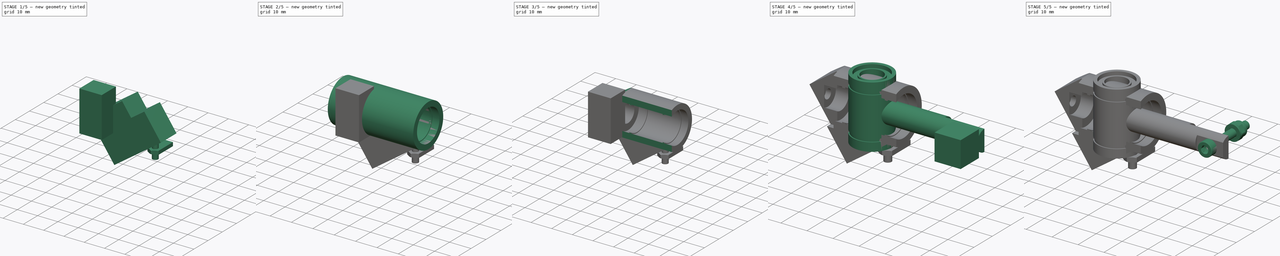
[diagram: build sequence overview — one tinted view per stage of 5, left to right]
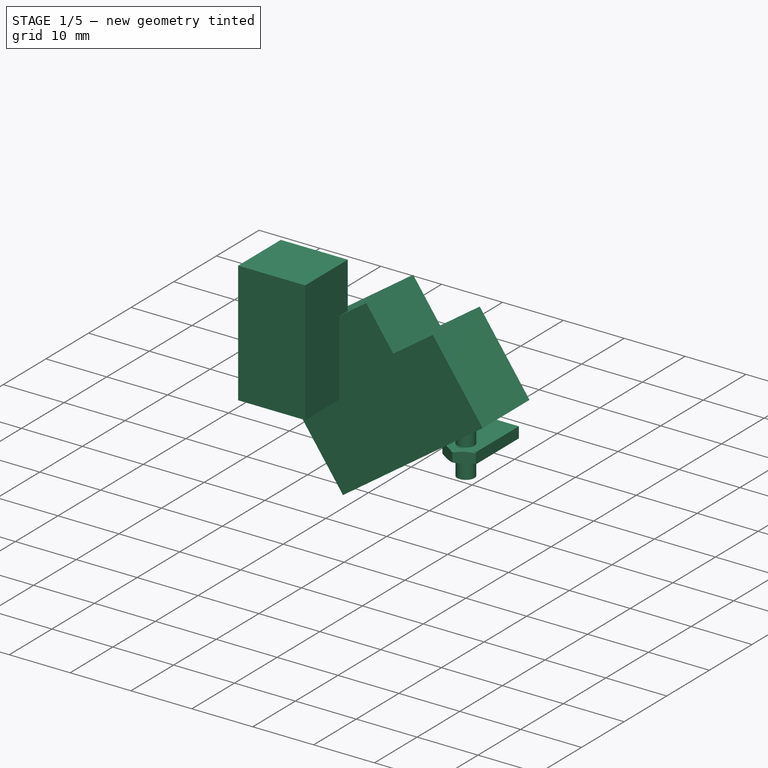
[diagram: stage 1 of 5 — iso view after this stage's code; geometry added in this stage tinted green]
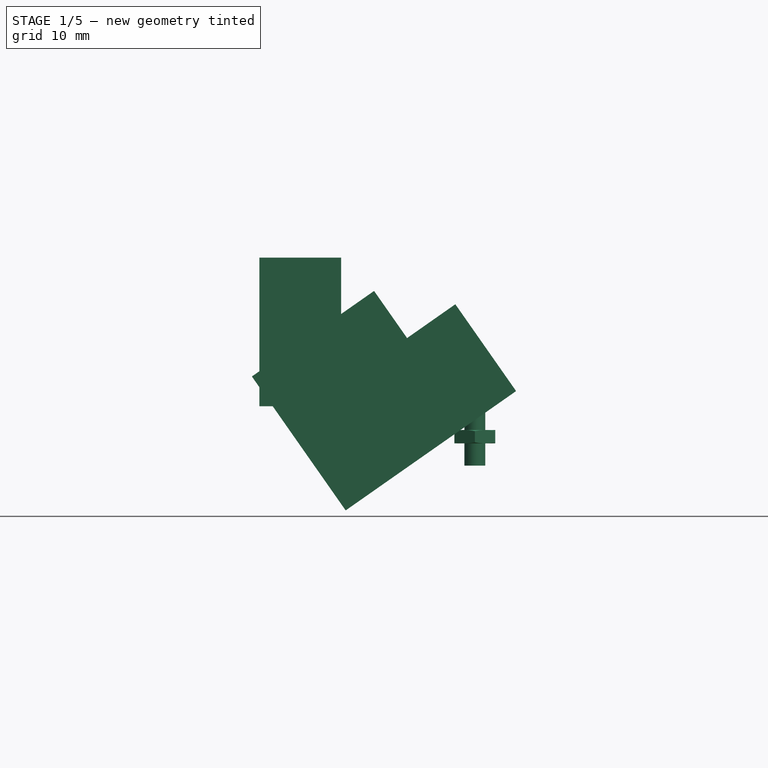
[diagram: stage 1 of 5 — front view after this stage's code; geometry added in this stage tinted green]
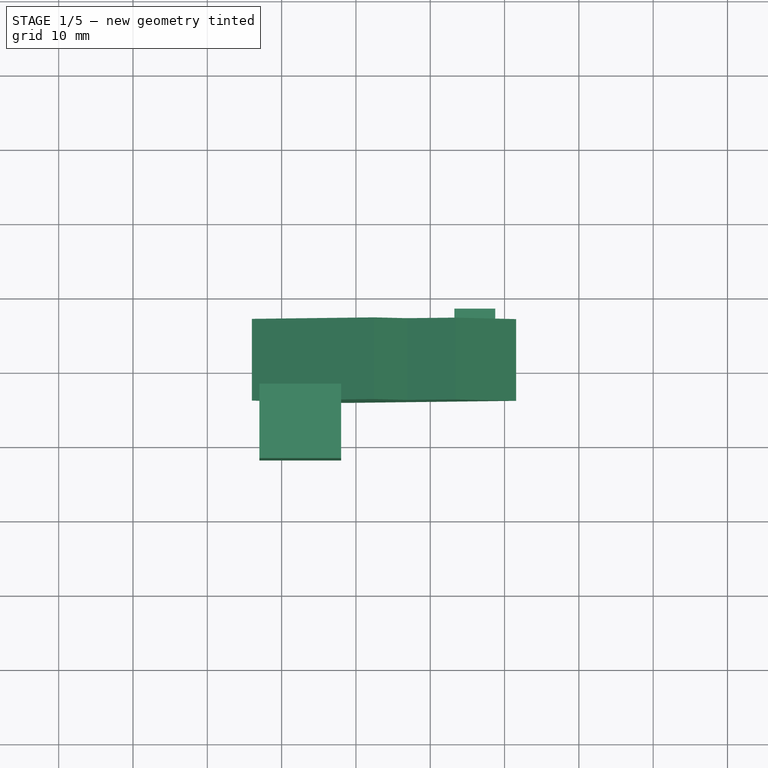
[diagram: stage 1 of 5 — top view after this stage's code; geometry added in this stage tinted green]
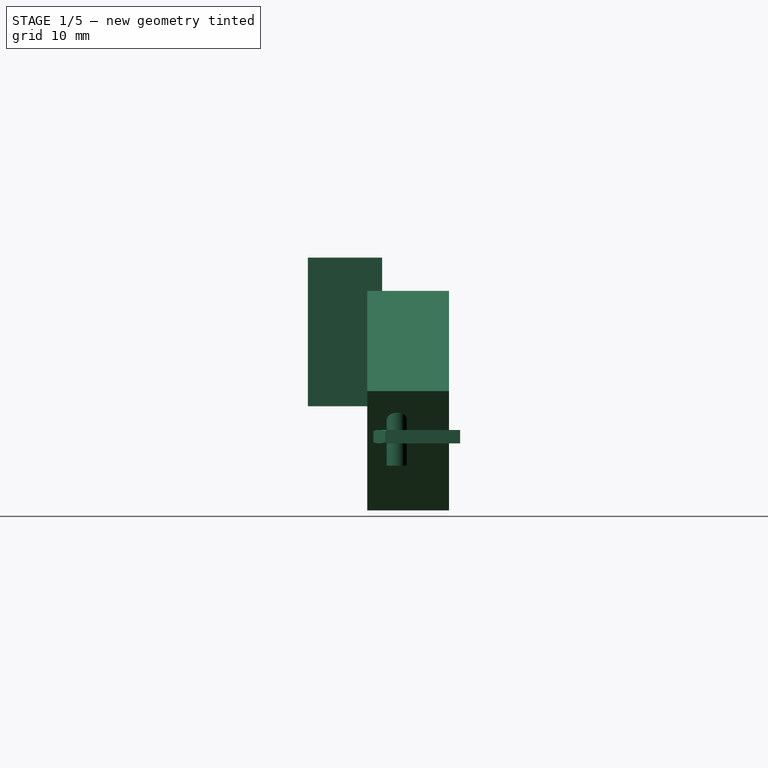
[diagram: stage 1 of 5 — right view after this stage's code; geometry added in this stage tinted green]
FCSTD DOCUMENT  (FreeCAD 0.18R16117 (Git))
Label: Linear_GT2_Belt_Tensioner
License: All rights reserved
LicenseURL: http://en.wikipedia.org/wiki/All_rights_reserved
objects: Part::Cut×13, Part::Box×9, Part::Cylinder×8, Part::FeaturePython×5, Part::Feature×4, App::Part×3, Sketcher::SketchObject×1, PartDesign::Revolution×1, Part::MultiFuse×1
note: 43 computed .brp shape members not serialized (recipe doc carries the construction recipe); baked Part::Feature solids carry a one-line shape summary decoded from their .brp

FEATURE [App::Part] Part  label="Linear_GT2_Belt_Tensioner_Cursor"
  Group = -> [Cylinder025,Box,Box001,Cut,Cut001,Screw,Washer,Nut,Washer001,Connect001,Cylinder,Cut002,Cylinder026,Cut003]
  Origin = -> Origin
  Placement = pos=(-12,0,0) rot=(0,0,1;0rad)
FEATURE [Part::Feature] Revolution001001  label="LM8UU-simple_copy"
  Placement = pos=(0,0,0) rot=(0.57735,-0.57735,0.57735;2.0944rad)
  shape: bbox 24 x 15 x 15 mm, 20 faces (baked)
FEATURE [Part::Box] Box004  label="Cube004"
  AttacherType = Attacher::AttachEngine3D
  Height = 28
  Length = 22
  Placement = pos=(-24,-4,-5) rot=(0,1,0;0.959931rad)
  Width = 11
FEATURE [Part::Box] Box009  label="Cube009"
  AttacherType = Attacher::AttachEngine3D
  Height = 9
  Length = 12
  Placement = pos=(-10,-4,10) rot=(0,1,0;0.959931rad)
  Width = 11
FEATURE [Part::Cut] Cut004
  Base = -> Box004
  Tool = -> Box009
FEATURE [Part::Box] Box008  label="Cube008"
  AttacherType = Attacher::AttachEngine3D
  Height = 20
  Length = 11
  Placement = pos=(-12,-12,11) rot=(0,1,0;3.14159rad)
  Width = 10
FEATURE [Part::Feature] Cut012001  label="Cut013"
  shape: bbox 34.65 x 14 x 29.89 mm, 26 faces (baked)
FEATURE [App::Part] Part001  label="Linear_GT2_Belt_Tensioner_case"
  Group = -> [Revolution001,Revolution001001,Box004,Box005,Box006,Cylinder032,Cylinder033,Cylinder034,Cylinder035,Box007,Box008,Box009,Cut004,Fusion,Cut005,Cut006,Cut007,Cut008,Cut009,Cut010,Cut011,Cut012,Sketch,Revolution,Cut012001]
  Origin = -> Origin001
FEATURE [App::Part] Part002
  Group = -> [Part,Part001]
  Origin = -> Origin002
  Placement = pos=(0,0,0) rot=(0,-1,0;0.959931rad)
FEATURE [Part::FeaturePython] Nut001  label="M3-Nut"  # Fasteners workbench fastener (typed FeaturePython)
  Placement = pos=(6,0,-14) rot=(0,0,1;0.523599rad)
  diameter = 4
  invert = false
  matchOuter = false
  offset = 0
  thread = false
  type = 6
FEATURE [Part::Box] Box010  label="Cube010"
  AttacherType = Attacher::AttachEngine3D
  Height = 1.8
  Length = 5.5
  Placement = pos=(3.25,-1.5,-14) rot=(0,0,1;0rad)
  Width = 10
FEATURE [Part::Cylinder] Cylinder036  label="Cylinder009"
  Angle = 360
  AttacherType = Attacher::AttachEngine3D
  Height = 8
  Placement = pos=(6,0,-17) rot=(0,0,1;0rad)
  Radius = 1.4
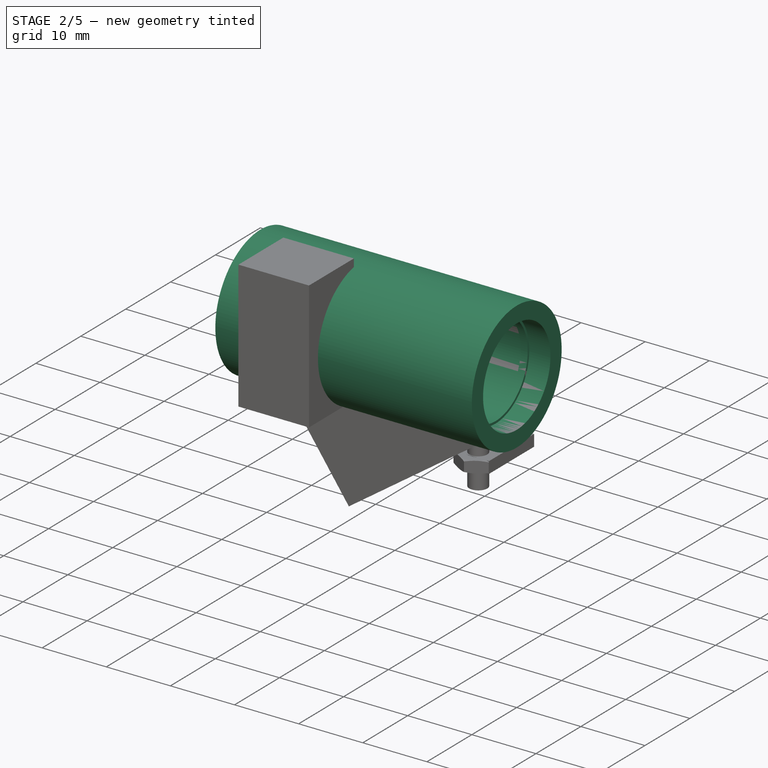
[diagram: stage 2 of 5 — iso view after this stage's code; geometry added in this stage tinted green]
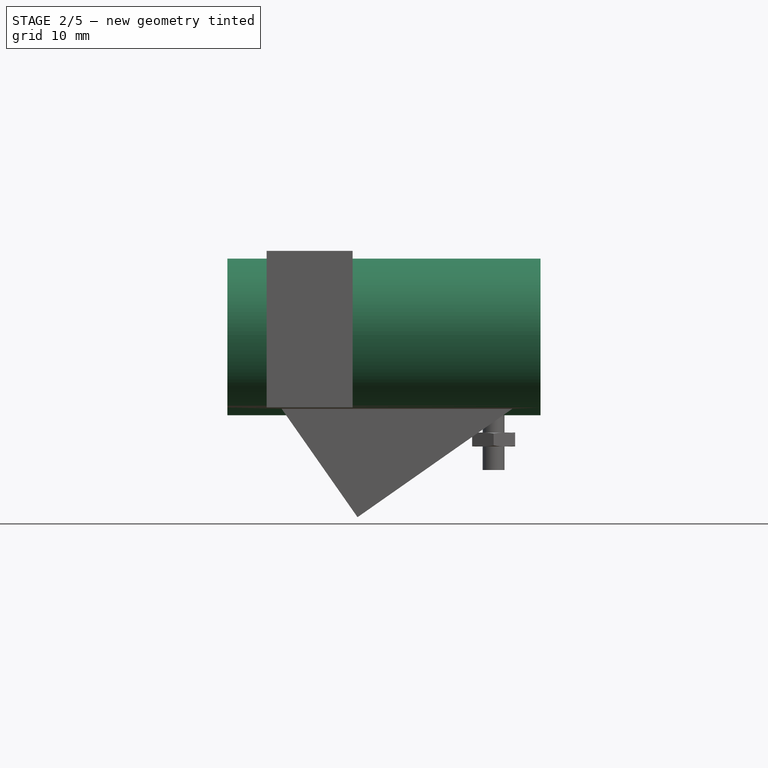
[diagram: stage 2 of 5 — front view after this stage's code; geometry added in this stage tinted green]
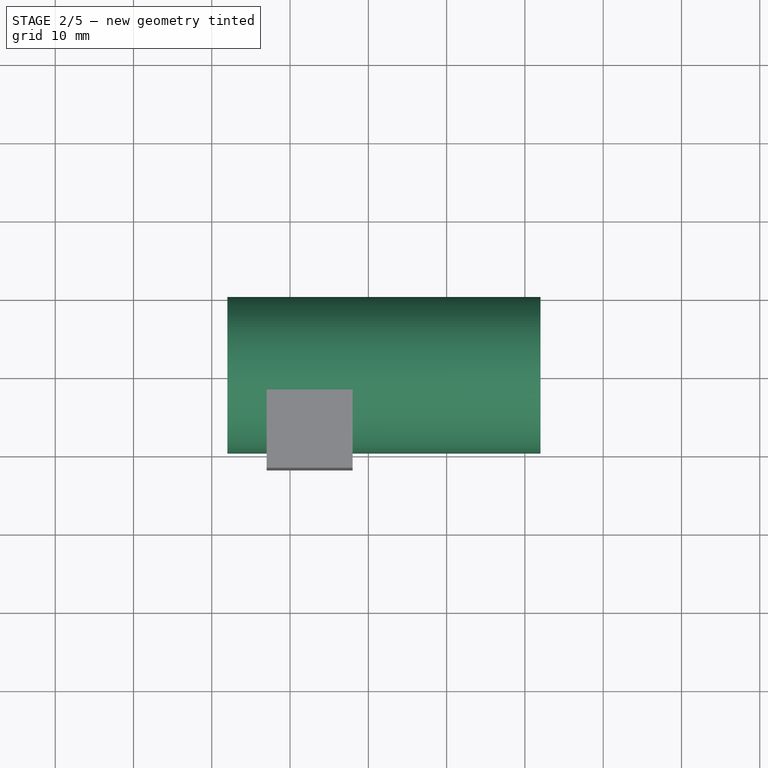
[diagram: stage 2 of 5 — top view after this stage's code; geometry added in this stage tinted green]
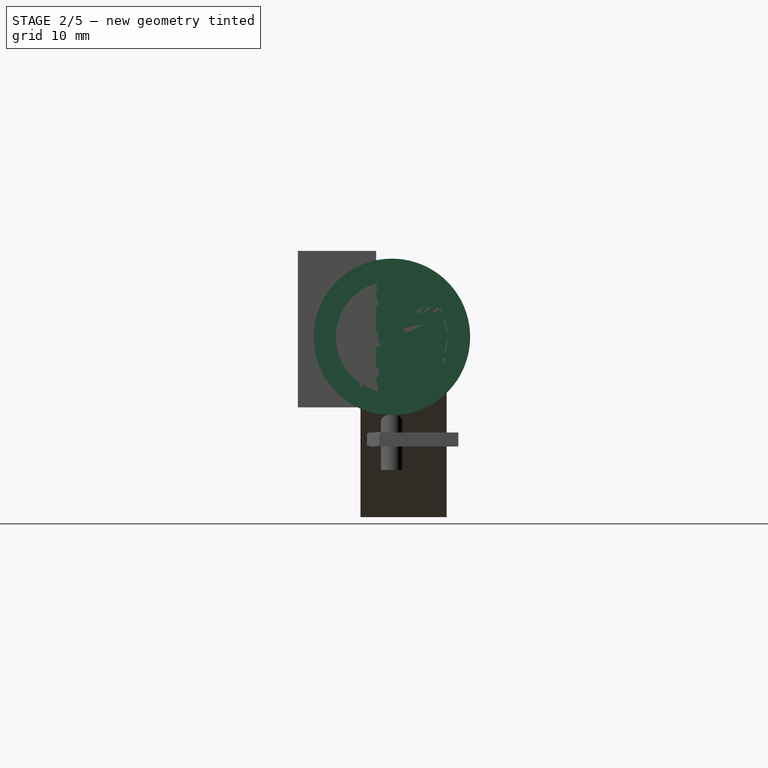
[diagram: stage 2 of 5 — right view after this stage's code; geometry added in this stage tinted green]
FEATURE [Part::Cylinder] Cylinder032  label="Cylinder006"
  Angle = 360
  AttacherType = Attacher::AttachEngine3D
  Height = 40
  Placement = pos=(12,0,0) rot=(0,-1,0;1.5708rad)
  Radius = 10
FEATURE [Part::Cylinder] Cylinder033  label="Cylinder007"
  Angle = 360
  AttacherType = Attacher::AttachEngine3D
  Height = 24
  Placement = pos=(12,0,0) rot=(0,-1,0;1.5708rad)
  Radius = 7
FEATURE [Part::Cylinder] Cylinder034  label="Bar_8mm002"
  Angle = 360
  AttacherType = Attacher::AttachEngine3D
  Height = 5
  Placement = pos=(-12,0,0) rot=(0,-1,0;1.5708rad)
  Radius = 4.4
FEATURE [Part::Cylinder] Cylinder035  label="Cylinder008"
  Angle = 360
  AttacherType = Attacher::AttachEngine3D
  Height = 12
  Placement = pos=(-7,0,0) rot=(0,-1,0;1.5708rad)
  Radius = 1.8
FEATURE [Part::MultiFuse] Fusion
  Shapes = -> [Cut004,Cylinder032]
FEATURE [Part::Cut] Cut005
  Base = -> Fusion
  Tool = -> Revolution001001
FEATURE [Part::Cut] Cut006
  Base = -> Cut005
  Tool = -> Cylinder033
FEATURE [Part::Cut] Cut007
  Base = -> Cut006
  Tool = -> Cylinder034
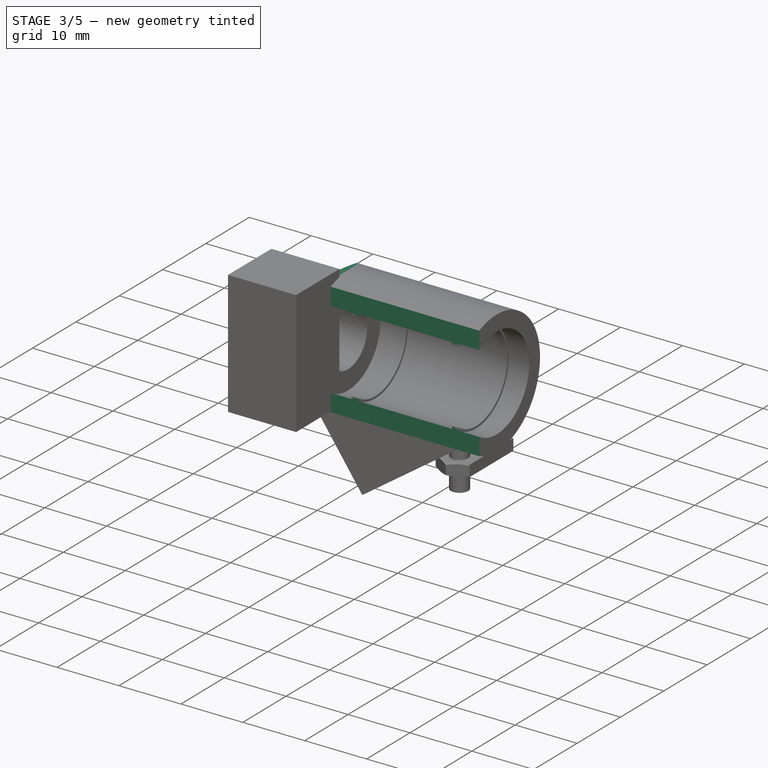
[diagram: stage 3 of 5 — iso view after this stage's code; geometry added in this stage tinted green]
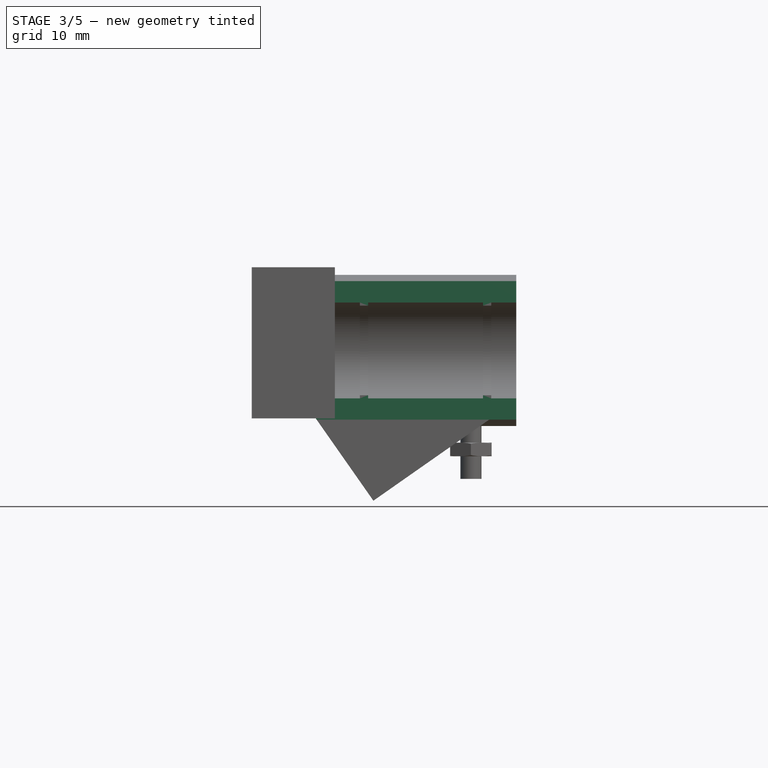
[diagram: stage 3 of 5 — front view after this stage's code; geometry added in this stage tinted green]
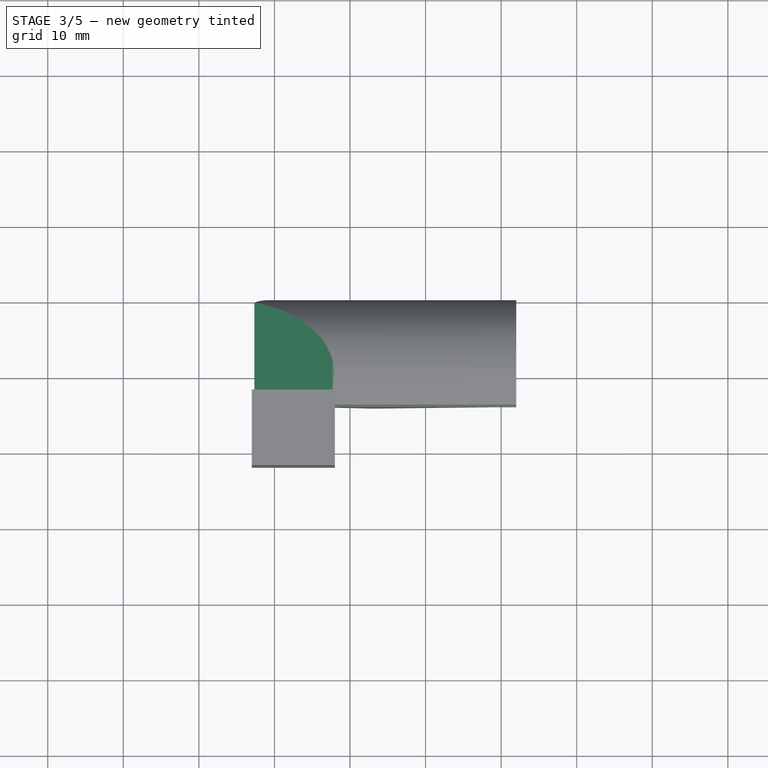
[diagram: stage 3 of 5 — top view after this stage's code; geometry added in this stage tinted green]
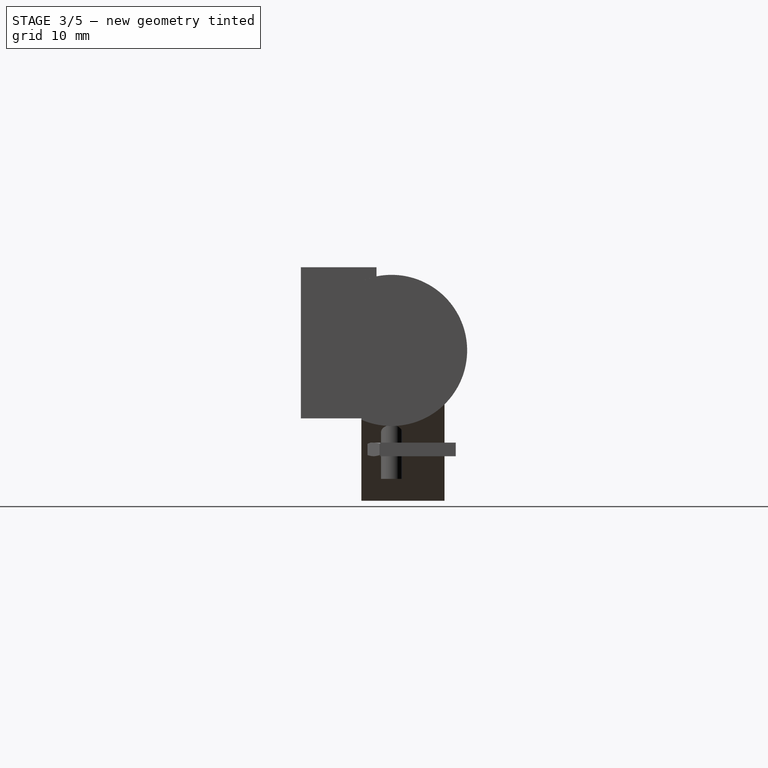
[diagram: stage 3 of 5 — right view after this stage's code; geometry added in this stage tinted green]
FEATURE [Part::Box] Box005  label="Cube005"
  AttacherType = Attacher::AttachEngine3D
  Height = 13
  Length = 34
  Placement = pos=(-36,-4,-1) rot=(0,1,0;0.959931rad)
  Width = 16
FEATURE [Part::Box] Box006  label="Cube006"
  AttacherType = Attacher::AttachEngine3D
  Height = 28
  Length = 22
  Placement = pos=(-39,-4,18) rot=(0,1,0;0.959931rad)
  Width = 16
FEATURE [Part::Box] Box007  label="Cube007"
  AttacherType = Attacher::AttachEngine3D
  Height = 20
  Length = 41
  Placement = pos=(12,-14,10) rot=(0,1,0;3.14159rad)
  Width = 10
FEATURE [Part::Cut] Cut008
  Base = -> Cut007
  Tool = -> Cylinder035
FEATURE [Part::Cut] Cut009
  Base = -> Cut008
  Tool = -> Box007
FEATURE [Part::Cut] Cut010
  Base = -> Cut009
  Tool = -> Box006
FEATURE [Part::Cut] Cut011
  Base = -> Cut010
  Tool = -> Box005
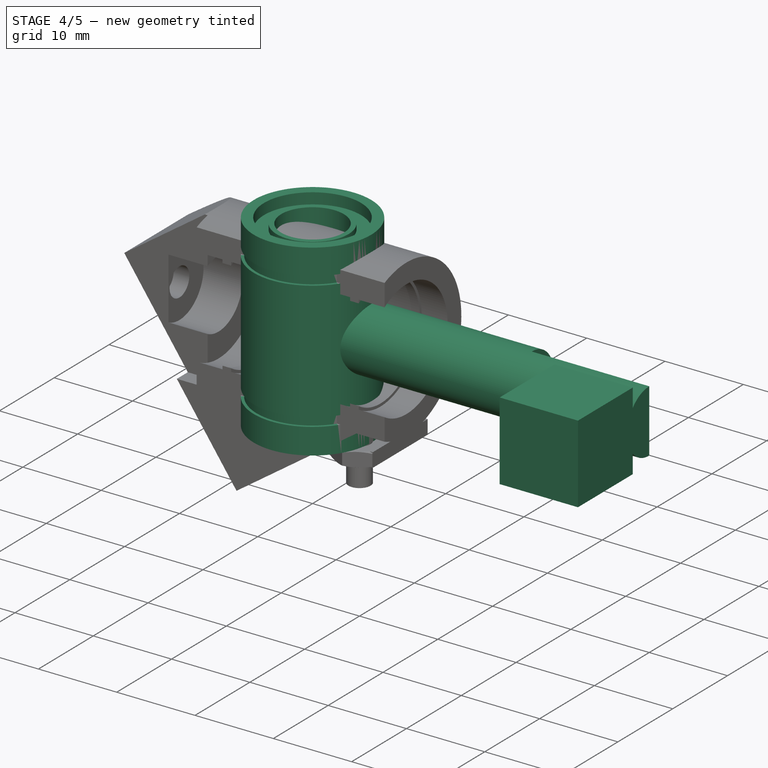
[diagram: stage 4 of 5 — iso view after this stage's code; geometry added in this stage tinted green]
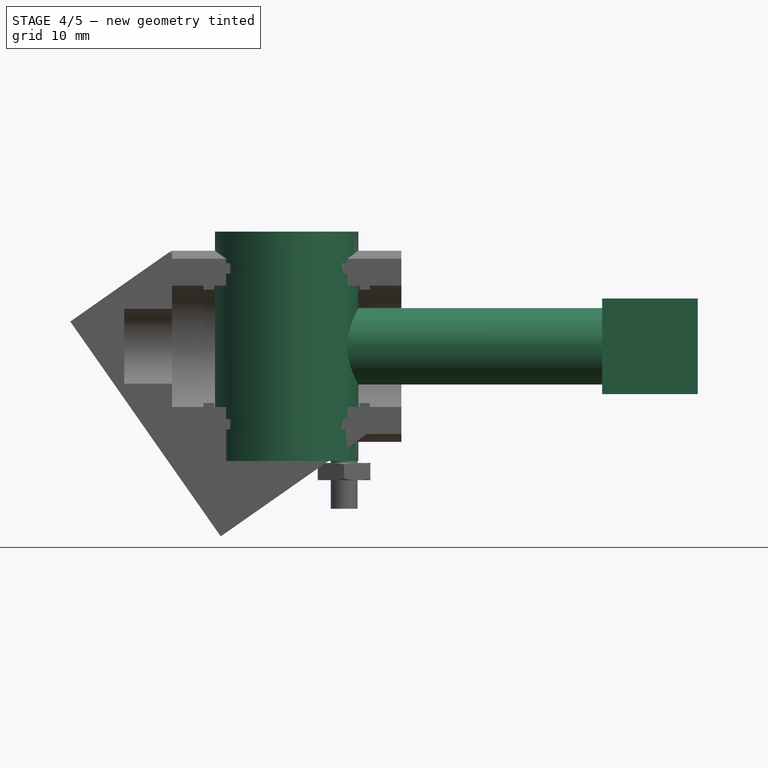
[diagram: stage 4 of 5 — front view after this stage's code; geometry added in this stage tinted green]
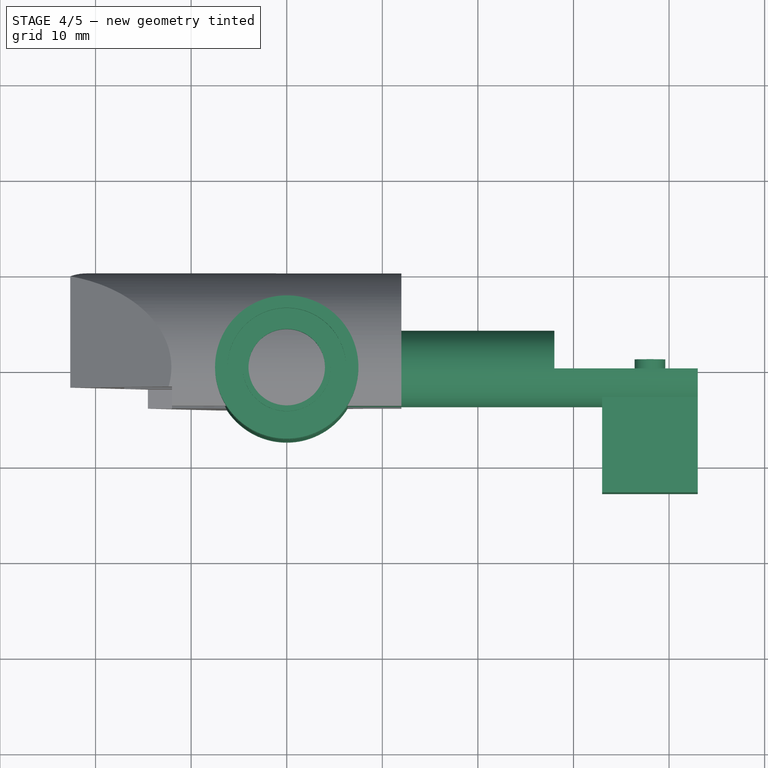
[diagram: stage 4 of 5 — top view after this stage's code; geometry added in this stage tinted green]
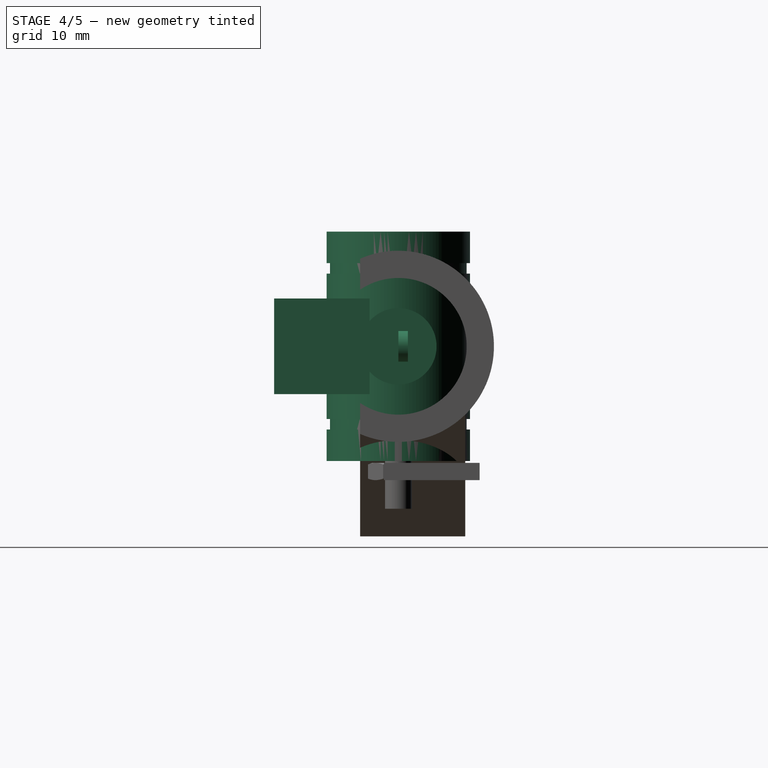
[diagram: stage 4 of 5 — right view after this stage's code; geometry added in this stage tinted green]
FEATURE [Part::Cylinder] Cylinder025  label="Bar_8mm"
  Angle = 360
  AttacherType = Attacher::AttachEngine3D
  Height = 43
  Placement = pos=(43,0,0) rot=(0,-1,0;1.5708rad)
  Radius = 4
FEATURE [Sketcher::SketchObject] Sketch  label="lm8uu-cross-section"
  MapMode = 5
  Placement = pos=(0,0,0) rot=(1,0,0;1.5708rad)
  sketch-geometry (20):
    g0: LineSegment StartX=7.5 StartY=-12 StartZ=0 EndX=7.5 EndY=-8.7 EndZ=0
    g1: LineSegment StartX=7.5 StartY=7.6 StartZ=0 EndX=7.15 EndY=7.6 EndZ=0
    g2: LineSegment StartX=7.15 StartY=7.6 StartZ=0 EndX=7.15 EndY=8.7 EndZ=0
    g3: LineSegment StartX=7.15 StartY=8.7 StartZ=0 EndX=7.5 EndY=8.7 EndZ=0
    g4: LineSegment StartX=7.5 StartY=8.7 StartZ=0 EndX=7.5 EndY=12 EndZ=0
    g5: LineSegment StartX=7.5 StartY=12 StartZ=0 EndX=6.2 EndY=12 EndZ=0
    g6: LineSegment StartX=6.2 StartY=12 StartZ=0 EndX=6.2 EndY=10.6 EndZ=0
    g7: LineSegment StartX=6.2 StartY=10.6 StartZ=0 EndX=4.6 EndY=10.6 EndZ=0
    g8: LineSegment StartX=4.6 StartY=10.6 StartZ=0 EndX=4.6 EndY=11.3 EndZ=0
    g9: LineSegment StartX=4.6 StartY=11.3 StartZ=0 EndX=4 EndY=11.3 EndZ=0
    g10: LineSegment StartX=4 StartY=11.3 StartZ=0 EndX=4 EndY=-11.3 EndZ=0
    g11: LineSegment StartX=7.5 StartY=-7.6 StartZ=0 EndX=7.15 EndY=-7.6 EndZ=0
    g12: LineSegment StartX=7.15 StartY=-8.7 StartZ=0 EndX=7.5 EndY=-8.7 EndZ=0
    g13: LineSegment StartX=7.5 StartY=-7.6 StartZ=0 EndX=7.5 EndY=7.6 EndZ=0
    g14: LineSegment StartX=7.15 StartY=-7.6 StartZ=0 EndX=7.15 EndY=-8.7 EndZ=0
    g15: LineSegment StartX=7.5 StartY=-12 StartZ=0 EndX=6.2 EndY=-12 EndZ=0
    g16: LineSegment StartX=6.2 StartY=-12 StartZ=0 EndX=6.2 EndY=-10.6 EndZ=0
    g17: LineSegment StartX=6.2 StartY=-10.6 StartZ=0 EndX=4.6 EndY=-10.6 EndZ=0
    g18: LineSegment StartX=4.6 StartY=-10.6 StartZ=0 EndX=4.6 EndY=-11.3 EndZ=0
    g19: LineSegment StartX=4.6 StartY=-11.3 StartZ=0 EndX=4 EndY=-11.3 EndZ=0
  constraints (58):
    c: Coincident(g13,g1)
    c: Coincident(g1,g2)
    c: Vertical(g2)
    c: Coincident(g2,g3)
    c: Coincident(g3,g4)
    c: Vertical(g4)
    c: Coincident(g4,g5)
    c: Coincident(g5,g6)
    c: Vertical(g6)
    c: Coincident(g6,g7)
    c: Horizontal(g7)
    c: Coincident(g7,g8)
    c: Vertical(g8)
    c: Coincident(g8,g9)
    c: Horizontal(g9)
    c: Coincident(g9,g10)
    c: Vertical(g10)
    c: Horizontal(g1)
    c: Horizontal(g5)
    c: Horizontal(g3)
    c: PointOnObject(g3,g0)
    c: Symmetric(g0,g4,g-1)
    c: DistanceY(g4,g0) = -24
    c: DistanceY(g2) = 1.1
    c: DistanceX(g3) = 0.35
    c: DistanceX(g-1,g4) = 7.5
    c: DistanceX(g-1,g9) = 4
    c: DistanceX(g5) = -1.3
    c: DistanceX(g9) = -0.6
    c: DistanceY(g6) = -1.4
    c: DistanceY(g8) = 0.7
    c: Horizontal(g11)
    c: Horizontal(g12)
    c: Coincident(g13,g11)
    c: Tangent(g0,g13)
    c: Coincident(g12,g0)
    c: PointOnObject(g14,g11)
    c: Coincident(g14,g12)
    c: Vertical(g14)
    c: Symmetric(g1,g11,g-1)
    c: DistanceY(g13) = 15.2
    c: Equal(g14,g2)
    c: Coincident(g0,g15)
    c: Horizontal(g15)
    c: Coincident(g15,g16)
    c: Vertical(g16)
    c: Coincident(g16,g17)
    c: Horizontal(g17)
    c: Coincident(g17,g18)
    c: Vertical(g18)
    c: Coincident(g18,g19)
    c: Horizontal(g19)
    c: Coincident(g10,g19)
    c: Symmetric(g10,g9,g-1)
    c: Symmetric(g16,g6,g-1)
    c: Symmetric(g17,g7,g-1)
    c: Coincident(g14,g11)
    c: PointOnObject(g11,g2)
FEATURE [PartDesign::Revolution] Revolution  label="LM8uu"
  Angle = 360
  Axis = (0,0,1)
  Base = (0,0,0)
  Placement = pos=(0,0,0) rot=(1,0,0;1.5708rad)
  Profile = -> Sketch
  ReferenceAxis = -> Sketch [V_Axis]
  Reversed = true
FEATURE [Part::Feature] Revolution001  label="LM8UU"
  Placement = pos=(0,0,0) rot=(0.57735,-0.57735,0.57735;2.0944rad)
  shape: bbox 24 x 15 x 15 mm, 20 faces (baked)
FEATURE [Part::Box] Box  label="Cube"
  AttacherType = Attacher::AttachEngine3D
  Height = 10
  Length = 15
  Placement = pos=(28,0,-5) rot=(0,0,1;0rad)
  Width = 10
FEATURE [Part::Box] Box001  label="Cube001"
  AttacherType = Attacher::AttachEngine3D
  Height = 10
  Length = 10
  Placement = pos=(33,-13,-5) rot=(0,0,1;0rad)
  Width = 10
FEATURE [Part::Feature] Connect001  label="GT2 20T Smooth 5mm Bore"
  Placement = pos=(38,0.675,0) rot=(-1,0,0;1.5708rad)
  shape: bbox 18 x 8.75 x 18 mm, 24 faces (baked)
FEATURE [Part::Cut] Cut
  Base = -> Cylinder025
  Tool = -> Box
FEATURE [Part::Cylinder] Cylinder
  Angle = 360
  AttacherType = Attacher::AttachEngine3D
  Height = 5
  Placement = pos=(38,-4,0) rot=(-1,0,0;1.5708rad)
  Radius = 1.6
FEATURE [Part::Cylinder] Cylinder026  label="Cylinder001"
  Angle = 360
  AttacherType = Attacher::AttachEngine3D
  Height = 5
  Placement = pos=(0,0,0) rot=(0,1,0;1.5708rad)
  Radius = 2
FEATURE [Part::Cut] Cut012
  Base = -> Cut011
  Tool = -> Box008
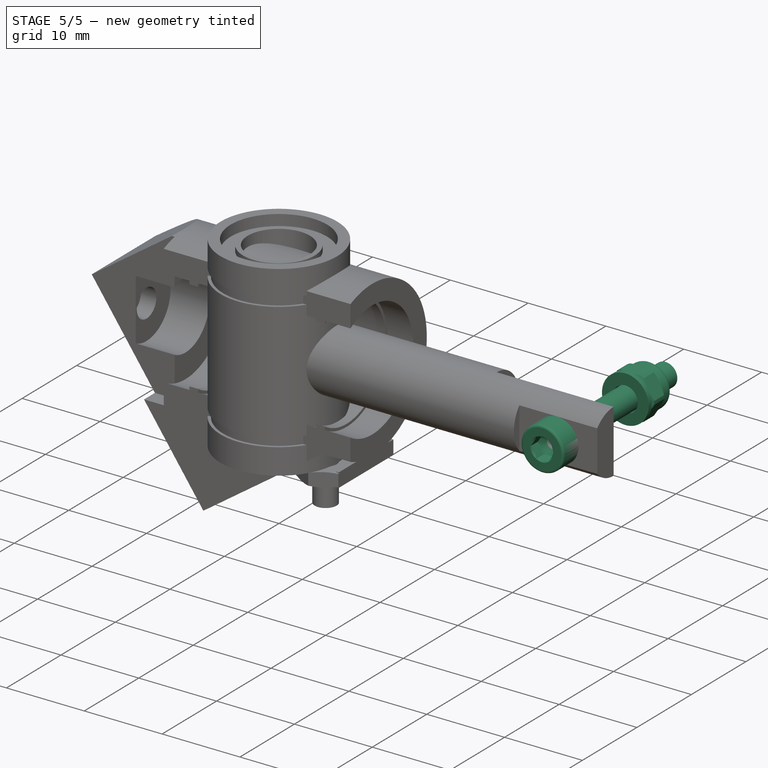
[diagram: stage 5 of 5 — iso view after this stage's code; geometry added in this stage tinted green]
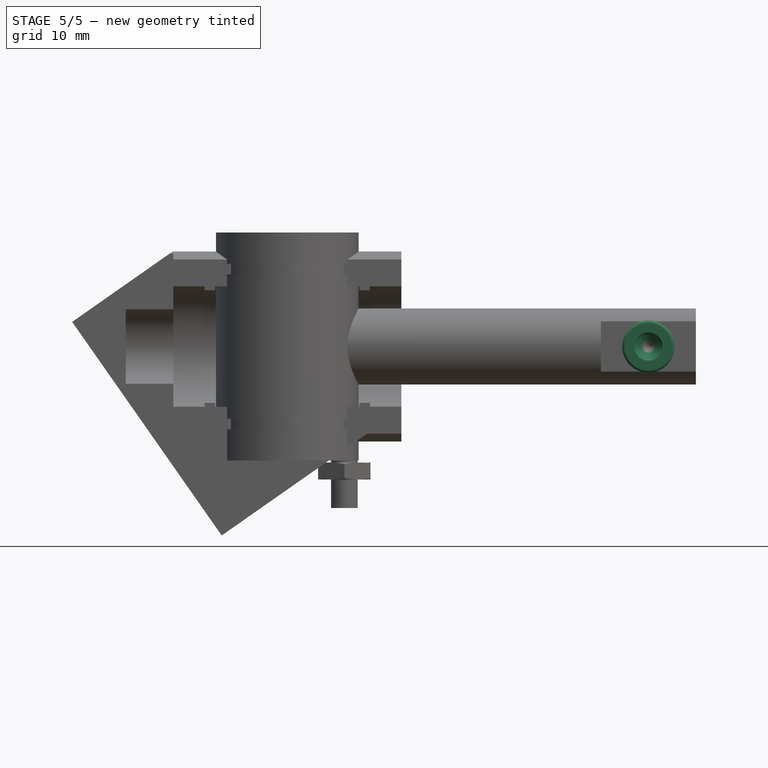
[diagram: stage 5 of 5 — front view after this stage's code; geometry added in this stage tinted green]
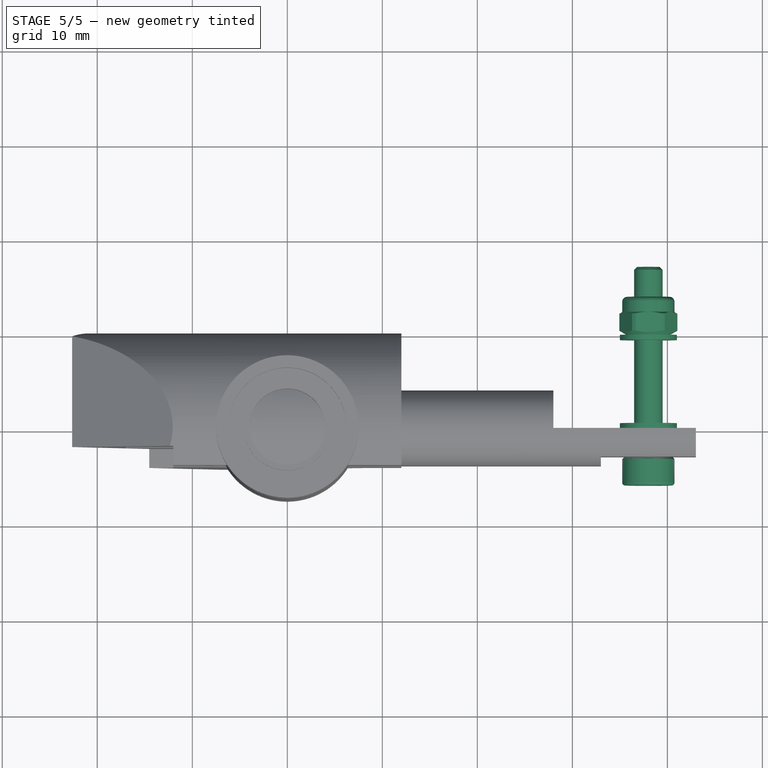
[diagram: stage 5 of 5 — top view after this stage's code; geometry added in this stage tinted green]
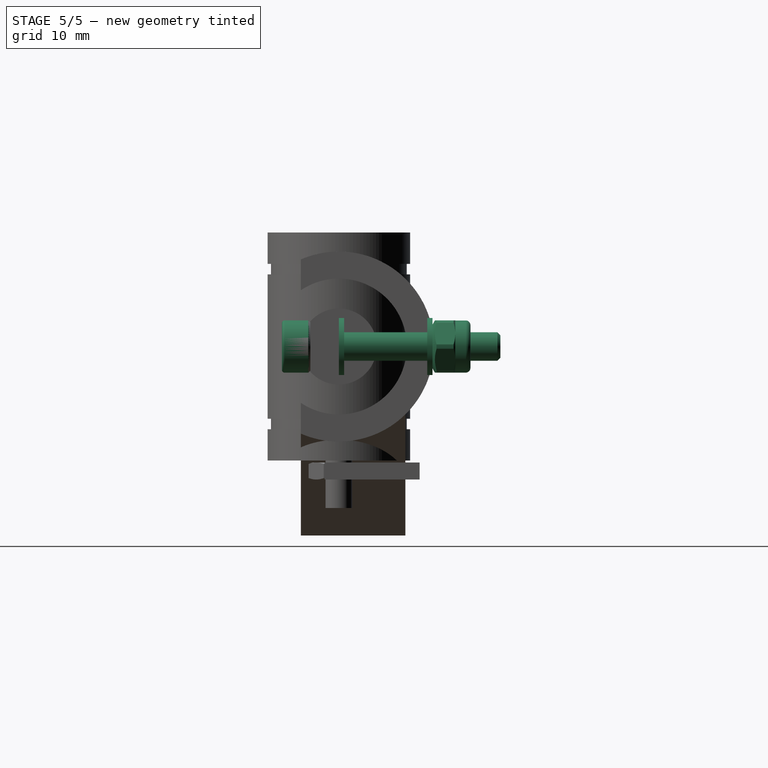
[diagram: stage 5 of 5 — right view after this stage's code; geometry added in this stage tinted green]
FEATURE [Part::Cut] Cut001
  Base = -> Cut
  Tool = -> Box001
FEATURE [Part::FeaturePython] Screw  label="M3x20-Screw"  # Fasteners workbench fastener (typed FeaturePython)
  Placement = pos=(38,-3,0) rot=(1,0,0;1.5708rad)
  diameter = 4
  invert = false
  length = 7
  matchOuter = false
  offset = 0
  thread = false
  type = 15
FEATURE [Part::FeaturePython] Washer  label="M3-Washer_axis_in"  # Fasteners workbench fastener (typed FeaturePython)
  Placement = pos=(38,0.55,0) rot=(1,0,0;1.5708rad)
  diameter = 4
  invert = false
  matchOuter = false
  offset = 0
  type = 2
FEATURE [Part::FeaturePython] Nut  label="M3-Nut_axis"  # Fasteners workbench fastener (typed FeaturePython)
  Placement = pos=(38,9.85,0) rot=(-1,0,0;1.5708rad)
  diameter = 1
  invert = false
  matchOuter = false
  offset = 0
  thread = false
  type = 2
FEATURE [Part::FeaturePython] Washer001  label="M3-Washer"  # Fasteners workbench fastener (typed FeaturePython)
  Placement = pos=(38,9.85,0) rot=(1,0,0;1.5708rad)
  diameter = 4
  invert = false
  matchOuter = false
  offset = 0
  type = 2
FEATURE [Part::Cut] Cut002
  Base = -> Cut001
  Tool = -> Cylinder
FEATURE [Part::Cut] Cut003  label="Piston"
  Base = -> Cut002
  Tool = -> Cylinder026
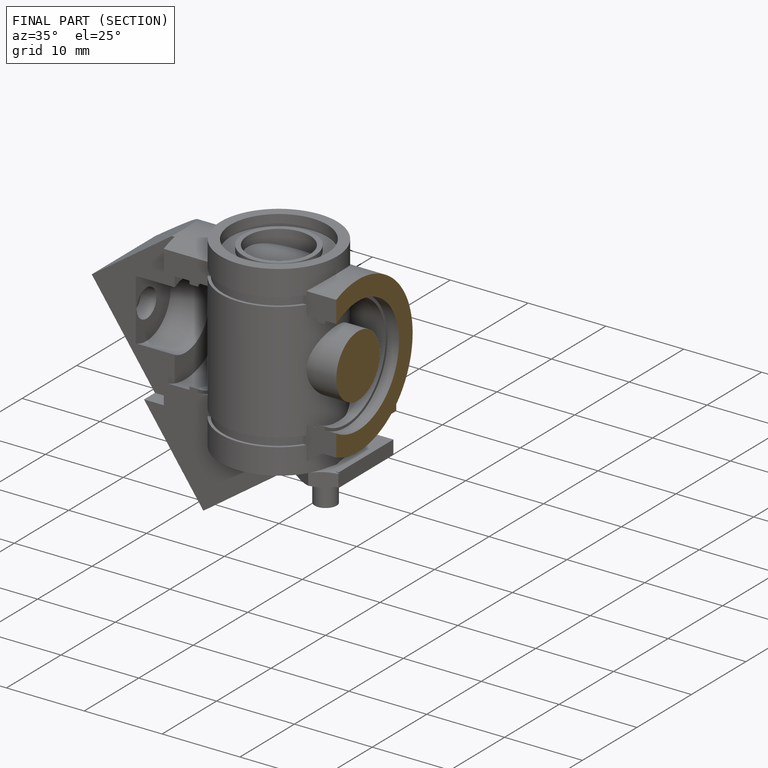
[diagram: finished part — half-section view (interior)]
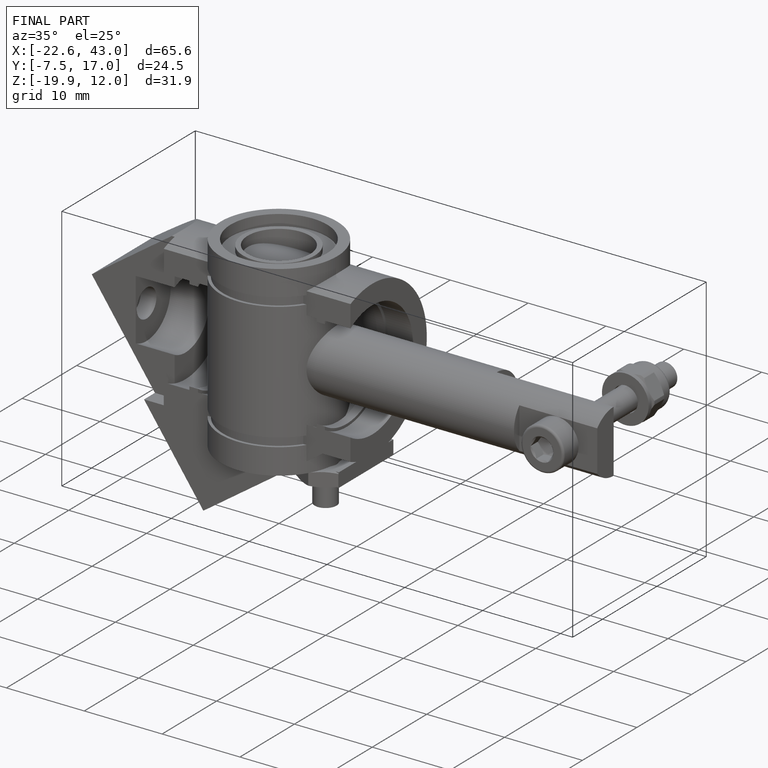
[diagram: finished part — iso view with bounding-box wireframe]
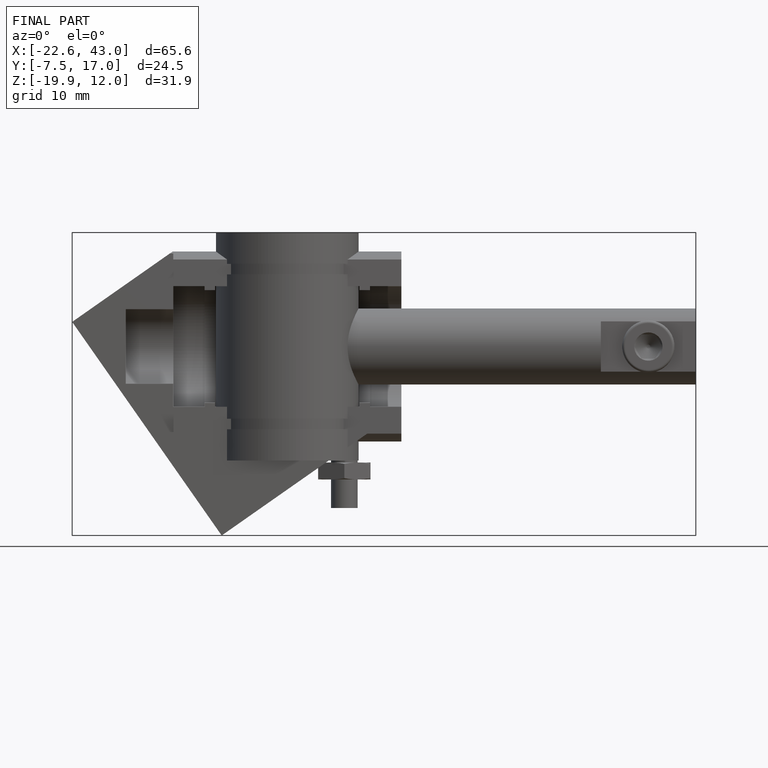
[diagram: finished part — front view with bounding-box wireframe]
